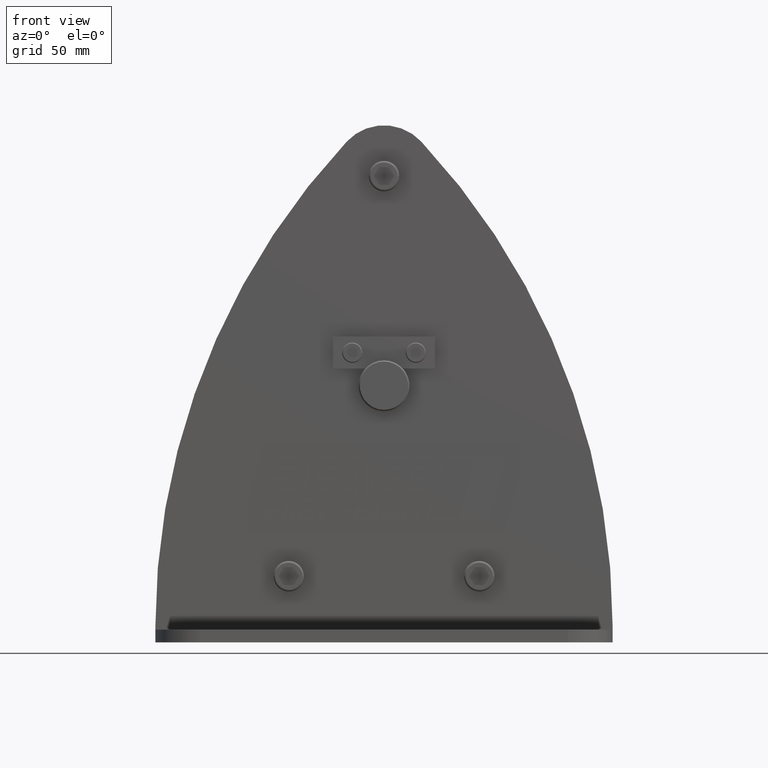
[diagram: clean part render]
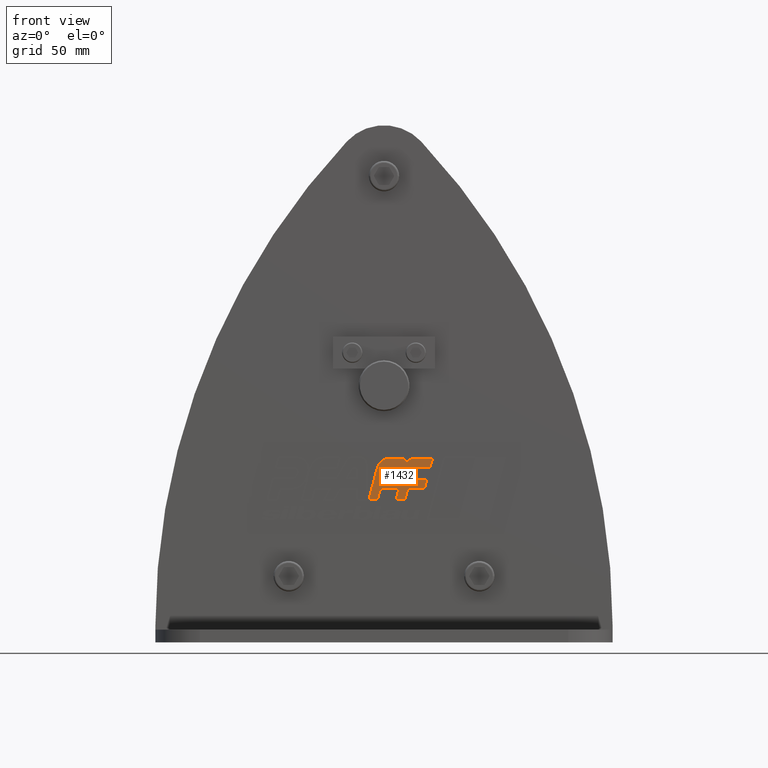
[diagram: same view with one face highlighted and labeled with its STEP entity id]
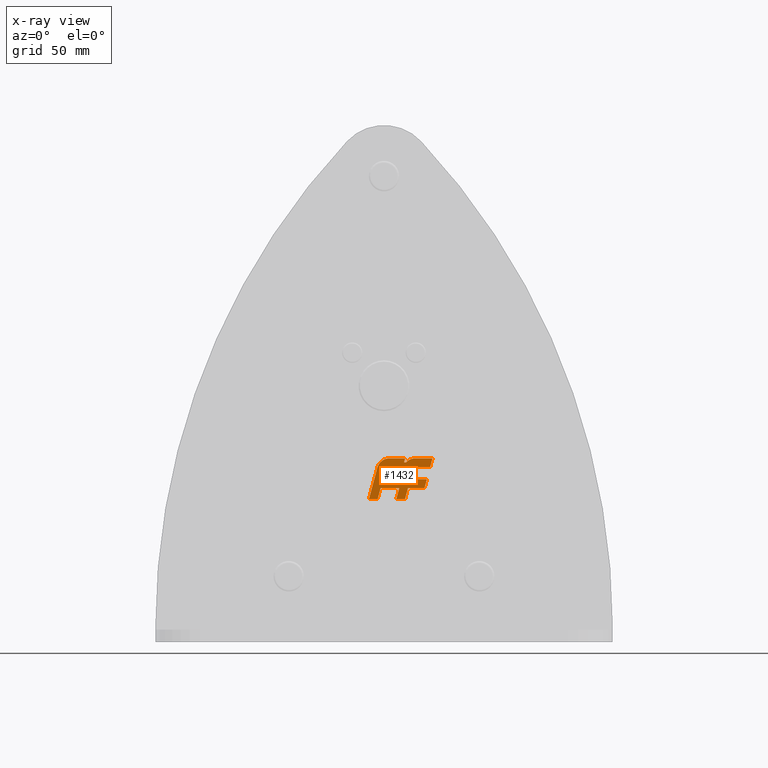
[diagram: x-ray of the same camera — body ghosted, the highlighted face saturated]
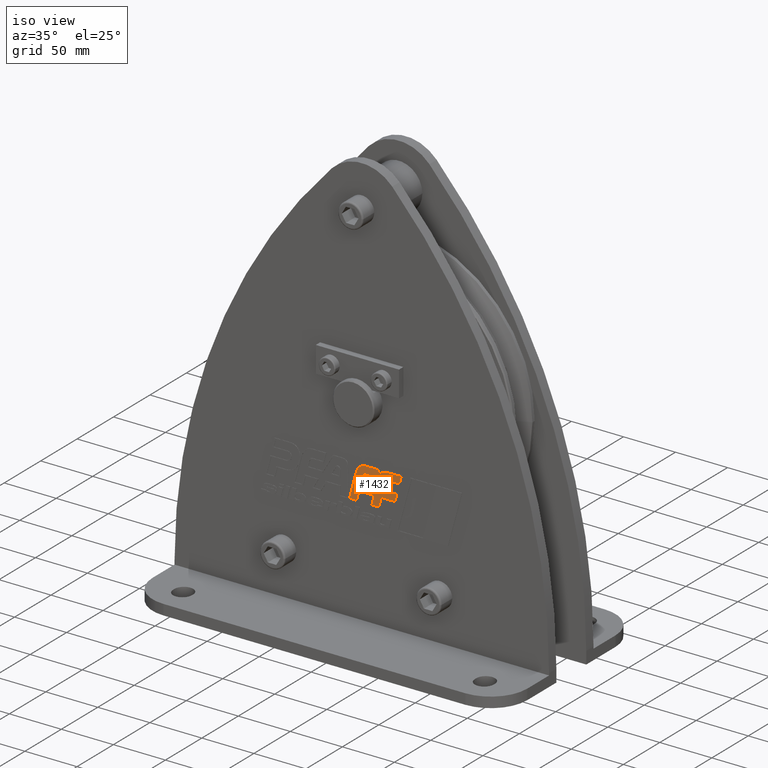
[diagram: same view with one face highlighted and labeled with its STEP entity id]
A machine part, front view. The second image highlights one B-rep face of the part: STEP entity #1432.
The next image is the same camera in x-ray: the body ghosted, the highlighted face saturated — about 0% of this face is hidden behind the body in this view.
A second angle (iso view) of the same face is appended — the face is thin or edge-on in the first view.
In plain terms, the highlighted planar face has unit normal (0, -1, 0).
Its self-contained STEP definition (entity closure, byte-faithful):
#1432=ADVANCED_FACE('',(#3169,#3170),#3171,.T.);
#3169=FACE_OUTER_BOUND('',#5241,.T.);
#3170=FACE_BOUND('',#5242,.T.);
#3171=PLANE('',#5243);
#5241=EDGE_LOOP('',(#9764,#9765,#9766,#9767,#9768,#9769,#9770,#9771,#9772,#9773,#9774,#9775,#9776,#9777,#9778,#9779,#9780,#9781,#9782,#9783));
#5242=EDGE_LOOP('',(#9784,#9785,#9786,#9787,#9788));
#5243=AXIS2_PLACEMENT_3D('',#9789,#9790,#9791);
#9764=ORIENTED_EDGE('',*,*,#13661,.T.);
#9765=ORIENTED_EDGE('',*,*,#13737,.T.);
#9766=ORIENTED_EDGE('',*,*,#13733,.T.);
#9767=ORIENTED_EDGE('',*,*,#13729,.T.);
#9768=ORIENTED_EDGE('',*,*,#13725,.T.);
#9769=ORIENTED_EDGE('',*,*,#13721,.T.);
#9770=ORIENTED_EDGE('',*,*,#13717,.T.);
#9771=ORIENTED_EDGE('',*,*,#13713,.T.);
#9772=ORIENTED_EDGE('',*,*,#13709,.T.);
#9773=ORIENTED_EDGE('',*,*,#13705,.T.);
#9774=ORIENTED_EDGE('',*,*,#13701,.T.);
#9775=ORIENTED_EDGE('',*,*,#13697,.T.);
#9776=ORIENTED_EDGE('',*,*,#13693,.T.);
#9777=ORIENTED_EDGE('',*,*,#13689,.T.);
#9778=ORIENTED_EDGE('',*,*,#13685,.T.);
#9779=ORIENTED_EDGE('',*,*,#13681,.T.);
#9780=ORIENTED_EDGE('',*,*,#13677,.T.);
#9781=ORIENTED_EDGE('',*,*,#13673,.T.);
#9782=ORIENTED_EDGE('',*,*,#13669,.T.);
#9783=ORIENTED_EDGE('',*,*,#13665,.T.);
#9784=ORIENTED_EDGE('',*,*,#13960,.T.);
#9785=ORIENTED_EDGE('',*,*,#13961,.T.);
#9786=ORIENTED_EDGE('',*,*,#13962,.T.);
#9787=ORIENTED_EDGE('',*,*,#13963,.T.);
#9788=ORIENTED_EDGE('',*,*,#13964,.T.);
#9789=CARTESIAN_POINT('',(1.05537800720867E-012,-30.5,-43.4930480133687));
#9790=DIRECTION('',(0.0,-1.0,0.0));
#9791=DIRECTION('',(1.0,0.0,0.0));
#13661=EDGE_CURVE('',#16893,#16891,#16894,.T.);
#13665=EDGE_CURVE('',#16899,#16893,#16900,.T.);
#13669=EDGE_CURVE('',#16905,#16899,#16906,.T.);
#13673=EDGE_CURVE('',#16911,#16905,#16912,.T.);
#13677=EDGE_CURVE('',#16917,#16911,#16918,.T.);
#13681=EDGE_CURVE('',#16923,#16917,#16924,.T.);
#13685=EDGE_CURVE('',#16929,#16923,#16930,.T.);
#13689=EDGE_CURVE('',#16935,#16929,#16936,.T.);
#13693=EDGE_CURVE('',#16941,#16935,#16942,.T.);
#13697=EDGE_CURVE('',#16947,#16941,#16948,.T.);
#13701=EDGE_CURVE('',#16953,#16947,#16954,.T.);
#13705=EDGE_CURVE('',#16959,#16953,#16960,.T.);
#13709=EDGE_CURVE('',#16965,#16959,#16966,.T.);
#13713=EDGE_CURVE('',#16971,#16965,#16972,.T.);
#13717=EDGE_CURVE('',#16977,#16971,#16978,.T.);
#13721=EDGE_CURVE('',#16983,#16977,#16984,.T.);
#13725=EDGE_CURVE('',#16989,#16983,#16990,.T.);
#13729=EDGE_CURVE('',#16995,#16989,#16996,.T.);
#13733=EDGE_CURVE('',#17001,#16995,#17002,.T.);
#13737=EDGE_CURVE('',#16891,#17001,#17006,.T.);
#13960=EDGE_CURVE('',#17311,#17312,#17313,.T.);
#13961=EDGE_CURVE('',#17312,#17314,#17315,.T.);
#13962=EDGE_CURVE('',#17314,#17316,#17317,.T.);
#13963=EDGE_CURVE('',#17316,#17318,#17319,.T.);
#13964=EDGE_CURVE('',#17318,#17311,#17320,.T.);
#16891=VERTEX_POINT('',#24814);
#16893=VERTEX_POINT('',#24817);
#16894=LINE('',#24818,#24819);
#16899=VERTEX_POINT('',#24826);
#16900=LINE('',#24827,#24828);
#16905=VERTEX_POINT('',#24835);
#16906=LINE('',#24836,#24837);
#16911=VERTEX_POINT('',#24844);
#16912=LINE('',#24845,#24846);
#16917=VERTEX_POINT('',#24853);
#16918=LINE('',#24854,#24855);
#16923=VERTEX_POINT('',#24862);
#16924=LINE('',#24863,#24864);
#16929=VERTEX_POINT('',#24871);
#16930=LINE('',#24872,#24873);
#16935=VERTEX_POINT('',#24880);
#16936=LINE('',#24881,#24882);
#16941=VERTEX_POINT('',#24888);
#16942=CIRCLE('',#24889,9.918510549);
#16947=VERTEX_POINT('',#24896);
#16948=LINE('',#24897,#24898);
#16953=VERTEX_POINT('',#24905);
#16954=LINE('',#24906,#24907);
#16959=VERTEX_POINT('',#24914);
#16960=LINE('',#24915,#24916);
#16965=VERTEX_POINT('',#24922);
#16966=CIRCLE('',#24923,9.918510549);
#16971=VERTEX_POINT('',#24930);
#16972=LINE('',#24931,#24932);
#16977=VERTEX_POINT('',#24939);
#16978=LINE('',#24940,#24941);
#16983=VERTEX_POINT('',#24948);
#16984=LINE('',#24949,#24950);
#16989=VERTEX_POINT('',#24956);
#16990=CIRCLE('',#24957,3.7932012186);
#16995=VERTEX_POINT('',#24964);
#16996=LINE('',#24965,#24966);
#17001=VERTEX_POINT('',#24973);
#17002=LINE('',#24974,#24975);
#17006=LINE('',#24981,#24982);
#17311=VERTEX_POINT('',#25418);
#17312=VERTEX_POINT('',#25419);
#17313=LINE('',#25420,#25421);
#17314=VERTEX_POINT('',#25422);
#17315=LINE('',#25423,#25424);
#17316=VERTEX_POINT('',#25425);
#17317=LINE('',#25426,#25427);
#17318=VERTEX_POINT('',#25428);
#17319=LINE('',#25429,#25430);
#17320=CIRCLE('',#25431,3.7932012186);
#24814=CARTESIAN_POINT('',(31.8957898682399,-30.5,-80.6082753736703));
#24817=CARTESIAN_POINT('',(18.8808392101077,-30.5,-80.6082753736705));
#24818=CARTESIAN_POINT('',(15.9478949341205,-30.5,-80.6082753736703));
#24819=VECTOR('',#29891,1.0);
#24826=CARTESIAN_POINT('',(16.5327673343851,-30.5,-89.3713994356713));
#24827=CARTESIAN_POINT('',(22.8878542587647,-30.5,-65.6538907346231));
#24828=VECTOR('',#29894,1.0);
#24835=CARTESIAN_POINT('',(9.66483495058431,-30.5,-89.3713994356713));
#24836=CARTESIAN_POINT('',(8.2663836671931,-30.5,-89.3713994356713));
#24837=VECTOR('',#29897,1.0);
#24844=CARTESIAN_POINT('',(12.0129068263063,-30.5,-80.6082753736705));
#24845=CARTESIAN_POINT('',(15.075918028522,-30.5,-69.1769612619329));
#24846=VECTOR('',#29900,1.0);
#24853=CARTESIAN_POINT('',(-2.66566432973977,-30.5,-80.6082753736705));
#24854=CARTESIAN_POINT('',(6.00645341315366,-30.5,-80.6082753736705));
#24855=VECTOR('',#29903,1.0);
#24862=CARTESIAN_POINT('',(-5.01373641165395,-30.5,-89.3713994356713));
#24863=CARTESIAN_POINT('',(2.06302203405418,-30.5,-62.9605781094379));
#24864=VECTOR('',#29906,1.0);
#24871=CARTESIAN_POINT('',(-11.8816687171623,-30.5,-89.3713994356708));
#24872=CARTESIAN_POINT('',(-2.50686820582645,-30.5,-89.3713994356713));
#24873=VECTOR('',#29909,1.0);
#24880=CARTESIAN_POINT('',(-5.22123441553468,-30.5,-64.5143201252861));
#24881=CARTESIAN_POINT('',(-5.74891436929038,-30.5,-66.4836485304623));
#24882=VECTOR('',#29912,1.0);
#24888=CARTESIAN_POINT('',(4.35931106272996,-30.5,-57.1629090775762));
#24889=AXIS2_PLACEMENT_3D('',#29917,#29918,#29919);
#24896=CARTESIAN_POINT('',(16.631452675981,-30.5,-57.1629090775759));
#24897=CARTESIAN_POINT('',(2.17965553136551,-30.5,-57.1629090775762));
#24898=VECTOR('',#29922,1.0);
#24905=CARTESIAN_POINT('',(15.7912000687728,-30.5,-60.2987756604947));
#24906=CARTESIAN_POINT('',(17.7831371067051,-30.5,-52.8647626756563));
#24907=VECTOR('',#29925,1.0);
#24914=CARTESIAN_POINT('',(17.5046596573005,-30.5,-60.2987756604947));
#24915=CARTESIAN_POINT('',(7.89560003438693,-30.5,-60.2987756604947));
#24916=VECTOR('',#29928,1.0);
#24922=CARTESIAN_POINT('',(24.7415507259784,-30.5,-57.1629090775831));
#24923=AXIS2_PLACEMENT_3D('',#29933,#29934,#29935);
#24930=CARTESIAN_POINT('',(38.1779569748602,-30.5,-57.1629090775831));
#24931=CARTESIAN_POINT('',(12.3707753629897,-30.5,-57.1629090775831));
#24932=VECTOR('',#29938,1.0);
#24939=CARTESIAN_POINT('',(36.3156900661066,-30.5,-64.1129830255838));
#24940=CARTESIAN_POINT('',(38.6079704146106,-30.5,-55.5580772509253));
#24941=VECTOR('',#29941,1.0);
#24948=CARTESIAN_POINT('',(26.21136527386,-30.5,-64.1129830255835));
#24949=CARTESIAN_POINT('',(18.1578450330538,-30.5,-64.1129830255838));
#24950=VECTOR('',#29944,1.0);
#24956=CARTESIAN_POINT('',(22.5474151517024,-30.5,-66.9244313741893));
#24957=AXIS2_PLACEMENT_3D('',#29949,#29950,#29951);
#24964=CARTESIAN_POINT('',(20.7431060066003,-30.5,-73.6582014256714));
#24965=CARTESIAN_POINT('',(24.7211434225691,-30.5,-58.811971062077));
#24966=VECTOR('',#29954,1.0);
#24973=CARTESIAN_POINT('',(33.7580567769932,-30.5,-73.6582014256717));
#24974=CARTESIAN_POINT('',(10.3715530033007,-30.5,-73.6582014256714));
#24975=VECTOR('',#29957,1.0);
#24981=CARTESIAN_POINT('',(36.3980205755825,-30.5,-63.8057234946117));
#24982=VECTOR('',#29960,1.0);
#25418=CARTESIAN_POINT('',(3.63390582403846,-30.5,-64.1129830216709));
#25419=CARTESIAN_POINT('',(16.4328082006626,-30.5,-64.1129830216707));
#25420=CARTESIAN_POINT('',(1.81695291201976,-30.5,-64.1129830216709));
#25421=VECTOR('',#30149,1.0);
#25422=CARTESIAN_POINT('',(13.8751737473247,-30.5,-73.6582014256711));
#25423=CARTESIAN_POINT('',(18.4599057854055,-30.5,-56.5477544772473));
#25424=VECTOR('',#30150,1.0);
#25425=CARTESIAN_POINT('',(-1.8343534340715,-30.5,-73.6582014256714));
#25426=CARTESIAN_POINT('',(6.93758687366288,-30.5,-73.6582014256711));
#25427=VECTOR('',#30151,1.0);
#25428=CARTESIAN_POINT('',(-0.0300452389313079,-30.5,-66.9244314769184));
#25429=CARTESIAN_POINT('',(1.99772988645869,-30.5,-59.35667157927));
#25430=VECTOR('',#30152,1.0);
#25431=AXIS2_PLACEMENT_3D('',#30153,#30154,#30155);
#29891=DIRECTION('',(1.0,0.0,0.0));
#29894=DIRECTION('',(0.258819030718537,0.0,0.965925830143245));
#29897=DIRECTION('',(1.0,0.0,0.0));
#29900=DIRECTION('',(-0.258819030718475,-0.0,-0.965925830143262));
#29903=DIRECTION('',(1.0,0.0,0.0));
#29906=DIRECTION('',(0.258819051923785,0.0,0.965925824461316));
#29909=DIRECTION('',(1.0,0.0,0.0));
#29912=DIRECTION('',(-0.258819044167608,-0.0,-0.965925826539577));
#29917=CARTESIAN_POINT('',(4.35931106273014,-30.5,-67.0814196265762));
#29918=DIRECTION('',(0.0,-1.0,0.0));
#29919=DIRECTION('',(0.0,0.0,1.0));
#29922=DIRECTION('',(-1.0,0.0,0.0));
#29925=DIRECTION('',(0.258818955650037,0.0,0.965925850257785));
#29928=DIRECTION('',(-1.0,0.0,0.0));
#29933=CARTESIAN_POINT('',(24.7415507259784,-30.5,-67.0814196265831));
#29934=DIRECTION('',(0.0,-1.0,0.0));
#29935=DIRECTION('',(0.0,0.0,1.0));
#29938=DIRECTION('',(-1.0,0.0,0.0));
#29941=DIRECTION('',(0.258819071950871,0.0,0.965925819095074));
#29944=DIRECTION('',(1.0,0.0,0.0));
#29949=CARTESIAN_POINT('',(26.2113661321396,-30.5,-67.9061842441834));
#29950=DIRECTION('',(-0.0,1.0,0.0));
#29951=DIRECTION('',(2.26267875E-007,0.0,-0.999999999999974));
#29954=DIRECTION('',(0.258819165259244,0.0,0.965925794093163));
#29957=DIRECTION('',(-1.0,0.0,0.0));
#29960=DIRECTION('',(0.258819071950904,0.0,0.965925819095065));
#30149=DIRECTION('',(1.0,0.0,-0.0));
#30150=DIRECTION('',(-0.258819129171187,-0.0,-0.965925803762933));
#30151=DIRECTION('',(-1.0,-0.0,-0.0));
#30152=DIRECTION('',(0.258819041804111,0.0,0.965925827172875));
#30153=CARTESIAN_POINT('',(3.63390577008039,-30.5,-67.9061842402709));
#30154=DIRECTION('',(-0.0,1.0,0.0));
#30155=DIRECTION('',(1.4224941E-008,0.0,1.0));